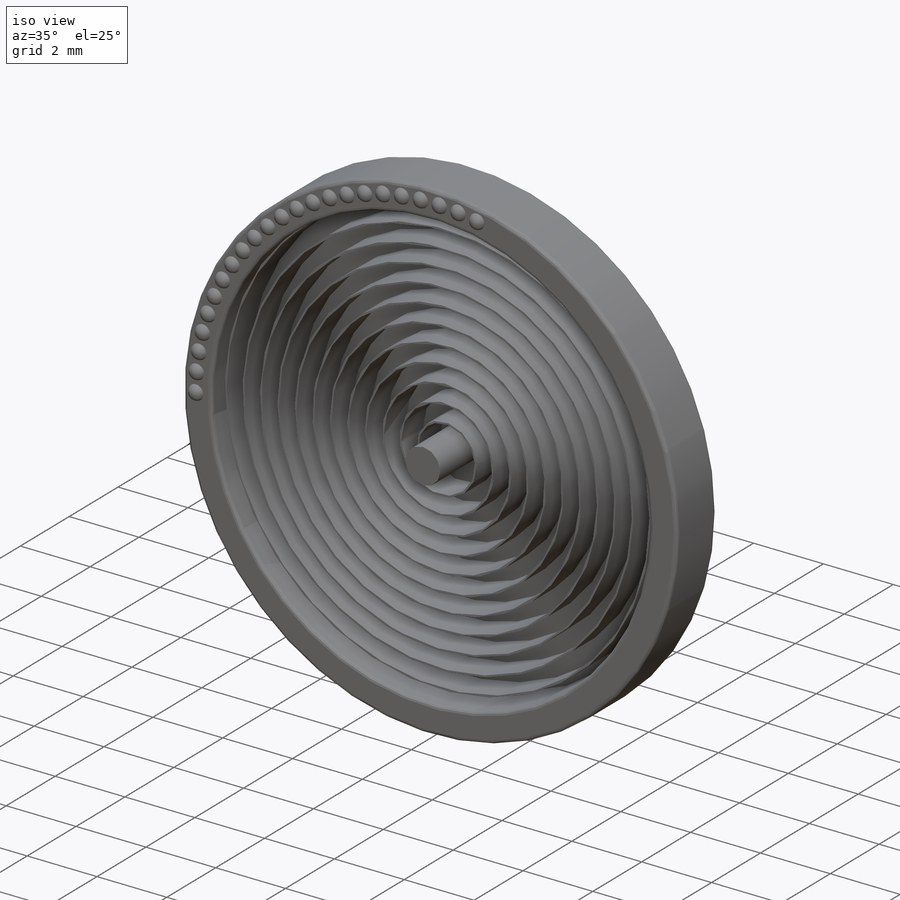
[diagram: iso view]
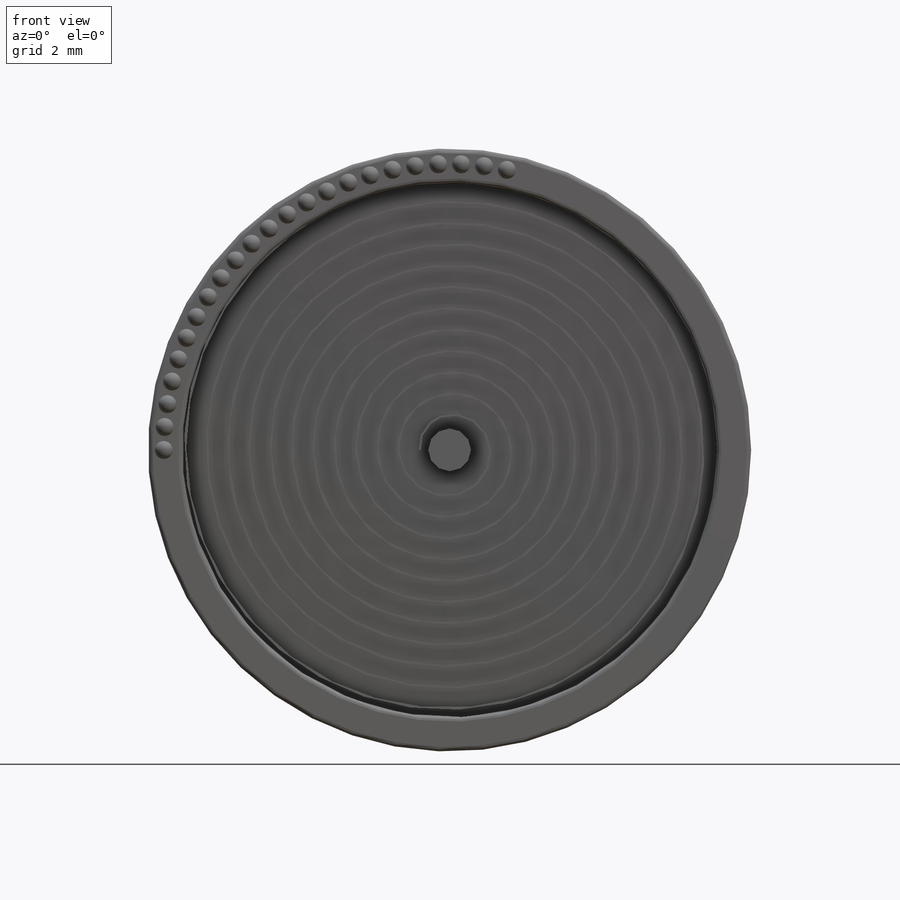
[diagram: front view]
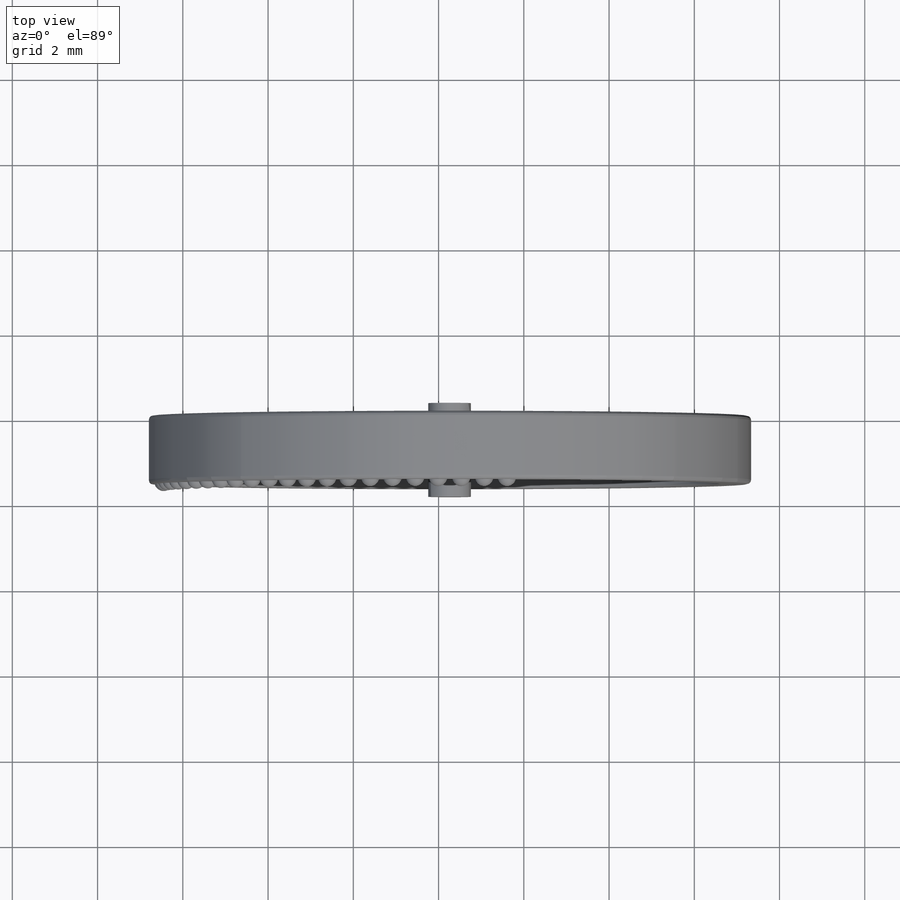
[diagram: top view]
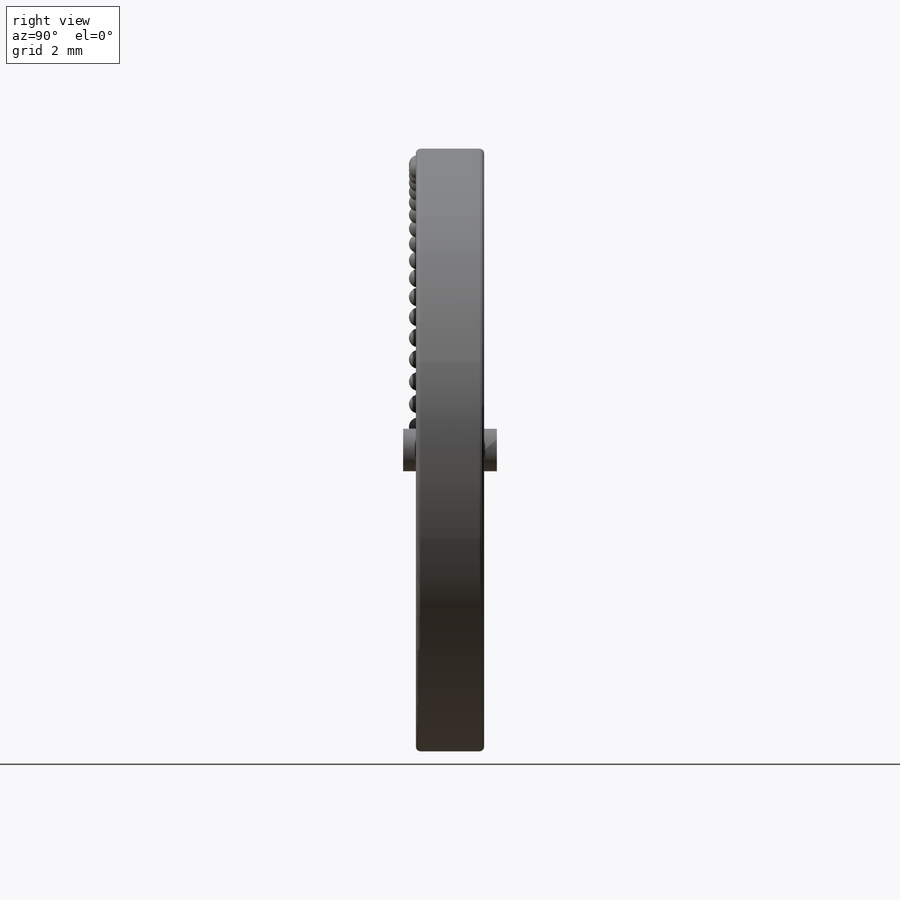
[diagram: right view]
SOLIDWORKS PART (.sldprt)
format: sldprt  version: not decoded by parser v0  size: 1,233,920 bytes
history: native  units: mm
features: sketch x7, plane x4, extrude x3, material x1, cut_extrude x1, helix x1, sweep x1, fillet x1, revolve x1, pattern_circular x1 (+8 scaffold rows collapsed)
feature tree (29):
  scaffold x8  (default folders/planes/origin — collapsed)
  material  "Matériau <non spécifié>"
  plane  "Face"
  plane  "Dessus"
  plane  "Droite"
  sketch  "Esquisse1"
  extrude  "Boss.-Extru.1"  Depth=1.6mm
  sketch  "Esquisse2"  dims[D1=1.0mm]
  extrude  "Boss.-Extru.2"  Depth=0.3mm
  sketch  "Esquisse3"  dims[D1=0.0mm]
  extrude  "Boss.-Extru.3"  Depth=0.3mm
  sketch  "Esquisse4"
  cut_extrude  "Enlèv. mat.-Extru.1"  Depth=1.4mm
  sketch  "Esquisse6"
  helix  "Hélice/Spirale1"  Pitch=0.5mm
  plane  "Plan1"
  sketch  "Esquisse8"  dims[D1=0.9mm D2=0.05mm]
  sweep  "Balayage1"
  fillet  "Congé1"  Radius=0.1mm
  sketch  "Esquisse9"
  revolve  "Révolution1"  Angle=360deg
  pattern_circular  "Répétition circulaire1"  Count=78 Angle=360deg
decode coverage: 11 of 16 modeling features carry decoded parameters
note: suppression state not decoded; provenance and decode notes live in map.json
